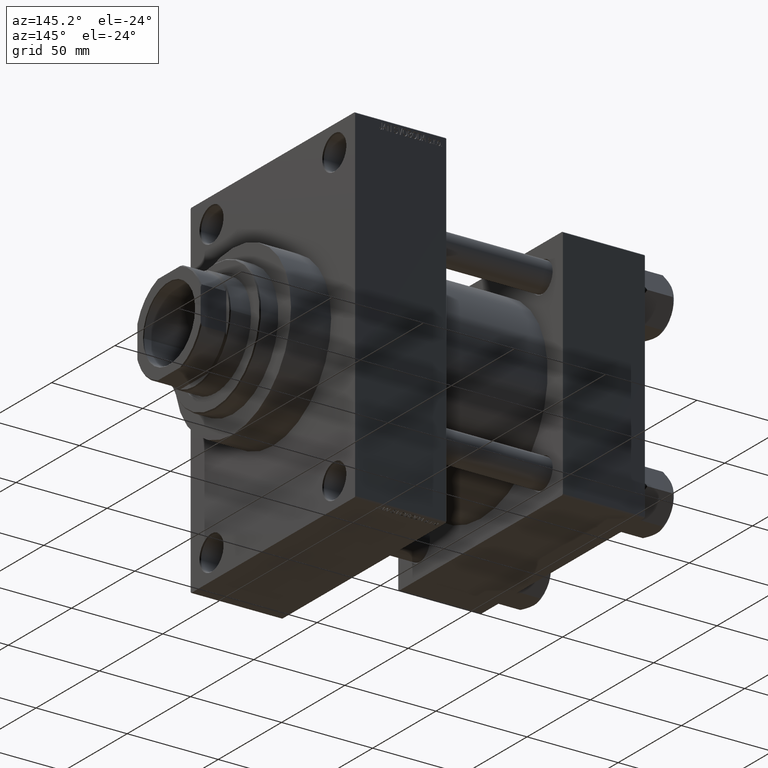
[diagram: clean part render]
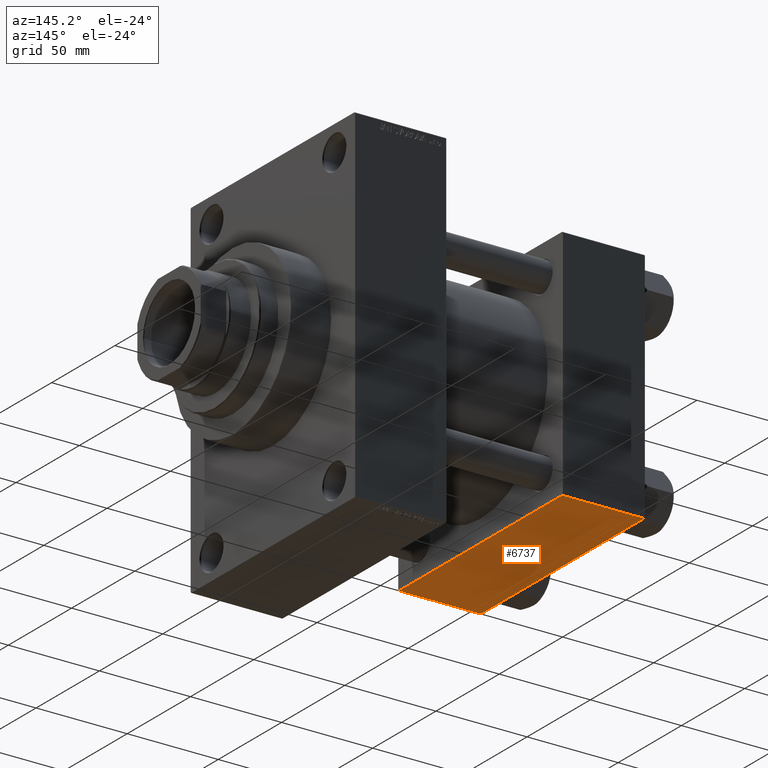
[diagram: same view with one face highlighted and labeled with its STEP entity id]
A machine part, auxiliary view. The second image highlights one B-rep face of the part: STEP entity #6737.
In plain terms, the highlighted planar face has unit normal (0, 0, -1).
Its self-contained STEP definition (entity closure, byte-faithful):
#381 = DIRECTION ( 'NONE',  ( 1.000000000000000000, 0.000000000000000000, 0.000000000000000000 ) ) ;
#1090 = LINE ( 'NONE', #26463, #5836 ) ;
#1160 = EDGE_CURVE ( 'NONE', #45419, #8579, #1090, .T. ) ;
#5836 = VECTOR ( 'NONE', #35077, 1000.000000000000000 ) ;
#6737 = ADVANCED_FACE ( 'NONE', ( #32378 ), #16675, .T. ) ;
#8579 = VERTEX_POINT ( 'NONE', #9213 ) ;
#9213 = CARTESIAN_POINT ( 'NONE',  ( 45.00000000000000000, -64.49999999999994316, -65.00000000000000000 ) ) ;
#9369 = CARTESIAN_POINT ( 'NONE',  ( 0.000000000000000000, -64.49999999999994316, -65.00000000000000000 ) ) ;
#9461 = EDGE_CURVE ( 'NONE', #27042, #45419, #26476, .T. ) ;
#9596 = DIRECTION ( 'NONE',  ( -1.000000000000000000, 0.000000000000000000, 0.000000000000000000 ) ) ;
#12193 = CARTESIAN_POINT ( 'NONE',  ( 0.000000000000000000, -64.49999999999994316, -65.00000000000000000 ) ) ;
#13658 = EDGE_CURVE ( 'NONE', #27042, #20020, #17610, .T. ) ;
#13918 = ORIENTED_EDGE ( 'NONE', *, *, #22062, .T. ) ;
#16675 = PLANE ( 'NONE',  #22901 ) ;
#17610 = LINE ( 'NONE', #20999, #19240 ) ;
#19240 = VECTOR ( 'NONE', #46344, 1000.000000000000000 ) ;
#20020 = VERTEX_POINT ( 'NONE', #12193 ) ;
#20999 = CARTESIAN_POINT ( 'NONE',  ( 0.000000000000000000, 65.00000000000000000, -64.99999999999998579 ) ) ;
#22062 = EDGE_CURVE ( 'NONE', #8579, #20020, #35926, .T. ) ;
#22901 = AXIS2_PLACEMENT_3D ( 'NONE', #39628, #42991, #24410 ) ;
#24410 = DIRECTION ( 'NONE',  ( 0.000000000000000000, 1.000000000000000000, 1.067522139062650548E-16 ) ) ;
#25650 = EDGE_LOOP ( 'NONE', ( #39885, #26738, #43751, #13918 ) ) ;
#26463 = CARTESIAN_POINT ( 'NONE',  ( 45.00000000000000000, 65.00000000000000000, -64.99999999999998579 ) ) ;
#26476 = LINE ( 'NONE', #45287, #27600 ) ;
#26738 = ORIENTED_EDGE ( 'NONE', *, *, #9461, .T. ) ;
#27042 = VERTEX_POINT ( 'NONE', #46677 ) ;
#27600 = VECTOR ( 'NONE', #381, 1000.000000000000000 ) ;
#32378 = FACE_OUTER_BOUND ( 'NONE', #25650, .T. ) ;
#35077 = DIRECTION ( 'NONE',  ( 0.000000000000000000, -1.000000000000000000, -1.067522139062650425E-16 ) ) ;
#35926 = LINE ( 'NONE', #9369, #41386 ) ;
#39628 = CARTESIAN_POINT ( 'NONE',  ( 45.00000000000000000, 65.00000000000000000, -64.99999999999998579 ) ) ;
#39885 = ORIENTED_EDGE ( 'NONE', *, *, #13658, .F. ) ;
#41386 = VECTOR ( 'NONE', #9596, 1000.000000000000000 ) ;
#42991 = DIRECTION ( 'NONE',  ( 0.000000000000000000, 1.067522139062650548E-16, -1.000000000000000000 ) ) ;
#43751 = ORIENTED_EDGE ( 'NONE', *, *, #1160, .T. ) ;
#45287 = CARTESIAN_POINT ( 'NONE',  ( 45.00000000000000000, 64.49999999999997158, -64.99999999999998579 ) ) ;
#45419 = VERTEX_POINT ( 'NONE', #45890 ) ;
#45890 = CARTESIAN_POINT ( 'NONE',  ( 45.00000000000000000, 64.49999999999997158, -64.99999999999998579 ) ) ;
#46344 = DIRECTION ( 'NONE',  ( 0.000000000000000000, -1.000000000000000000, -1.067522139062650425E-16 ) ) ;
#46677 = CARTESIAN_POINT ( 'NONE',  ( 0.000000000000000000, 64.49999999999997158, -64.99999999999998579 ) ) ;